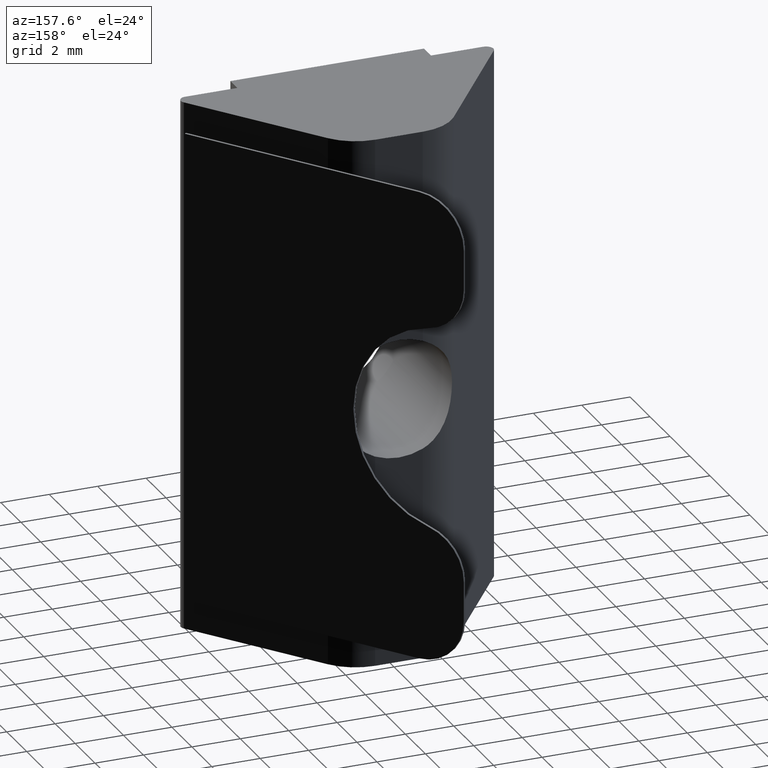
[diagram: clean part render]
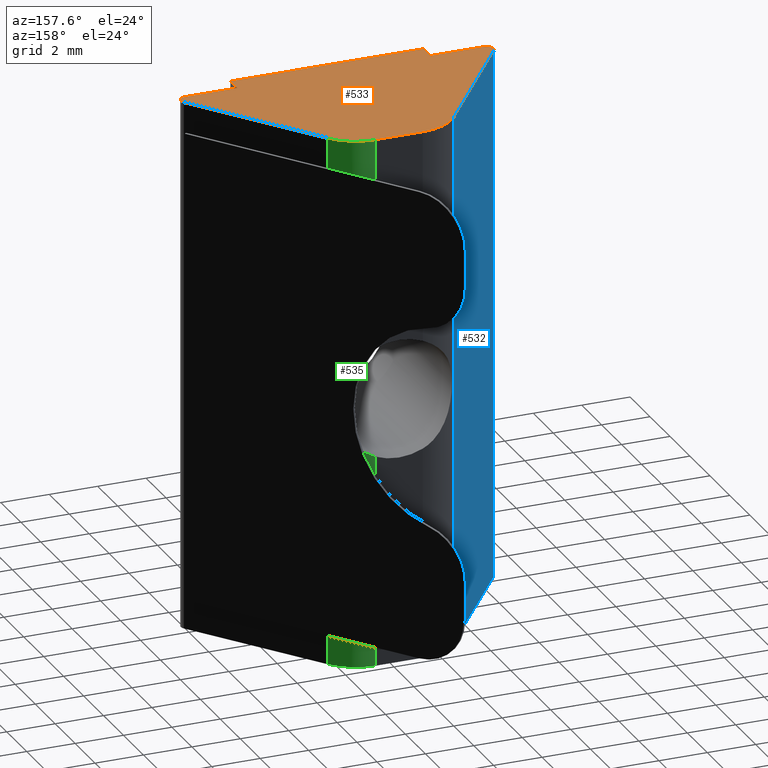
[diagram: same view with three faces highlighted in distinct colors, each labeled with its STEP entity id]
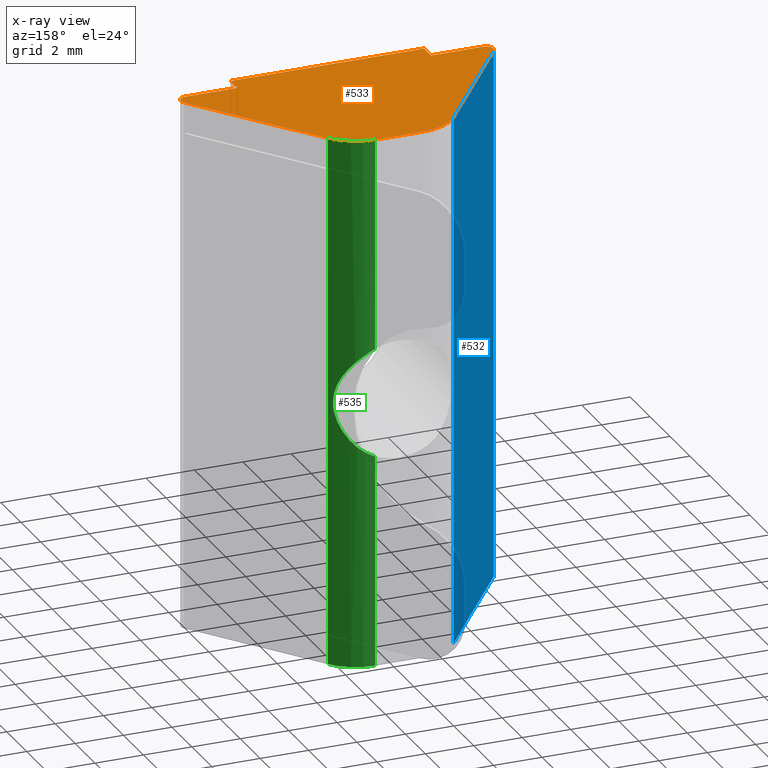
[diagram: x-ray of the same camera — body ghosted, the three highlighted faces saturated]
A machine part, auxiliary view with three faces highlighted in distinct colors.
The next image is the same camera in x-ray (body ghosted, the three faces saturated) — at least one of them is partly hidden behind the body in this view.
Their STEP definitions:

[orange] entity #533 — the highlighted planar face has unit normal (0, 0, 1).
#29=PLANE('',#579);
#54=FACE_OUTER_BOUND('',#82,.T.);
#82=EDGE_LOOP('',(#446,#447,#448,#449,#450,#451,#452,#453,#454,#455,#456,
#457));
#121=LINE('',#829,#175);
#133=LINE('',#861,#187);
#135=LINE('',#867,#189);
#136=LINE('',#870,#190);
#137=LINE('',#872,#191);
#138=LINE('',#874,#192);
#139=LINE('',#876,#193);
#140=LINE('',#877,#194);
#175=VECTOR('',#675,6.44424747615688);
#187=VECTOR('',#701,6.44424747615688);
#189=VECTOR('',#707,1.96884855750627);
#190=VECTOR('',#710,2.15920210335143);
#191=VECTOR('',#711,0.699999999999999);
#192=VECTOR('',#712,8.);
#193=VECTOR('',#713,0.699999999999999);
#194=VECTOR('',#714,2.15920210335143);
#213=CIRCLE('',#569,0.3);
#218=CIRCLE('',#577,0.3);
#219=CIRCLE('',#580,2.);
#220=CIRCLE('',#581,2.);
#246=VERTEX_POINT('',#818);
#247=VERTEX_POINT('',#819);
#250=VERTEX_POINT('',#827);
#261=VERTEX_POINT('',#854);
#262=VERTEX_POINT('',#855);
#263=VERTEX_POINT('',#860);
#264=VERTEX_POINT('',#864);
#265=VERTEX_POINT('',#866);
#266=VERTEX_POINT('',#869);
#267=VERTEX_POINT('',#871);
#268=VERTEX_POINT('',#873);
#269=VERTEX_POINT('',#875);
#308=EDGE_CURVE('',#246,#247,#213,.T.);
#313=EDGE_CURVE('',#246,#250,#121,.T.);
#326=EDGE_CURVE('',#261,#262,#218,.T.);
#329=EDGE_CURVE('',#263,#262,#133,.T.);
#331=EDGE_CURVE('',#264,#250,#219,.T.);
#332=EDGE_CURVE('',#264,#265,#135,.T.);
#333=EDGE_CURVE('',#263,#265,#220,.T.);
#334=EDGE_CURVE('',#261,#266,#136,.T.);
#335=EDGE_CURVE('',#266,#267,#137,.T.);
#336=EDGE_CURVE('',#267,#268,#138,.T.);
#337=EDGE_CURVE('',#268,#269,#139,.T.);
#338=EDGE_CURVE('',#269,#247,#140,.T.);
#446=ORIENTED_EDGE('',*,*,#308,.F.);
#447=ORIENTED_EDGE('',*,*,#313,.T.);
#448=ORIENTED_EDGE('',*,*,#331,.F.);
#449=ORIENTED_EDGE('',*,*,#332,.T.);
#450=ORIENTED_EDGE('',*,*,#333,.F.);
#451=ORIENTED_EDGE('',*,*,#329,.T.);
#452=ORIENTED_EDGE('',*,*,#326,.F.);
#453=ORIENTED_EDGE('',*,*,#334,.T.);
#454=ORIENTED_EDGE('',*,*,#335,.T.);
#455=ORIENTED_EDGE('',*,*,#336,.T.);
#456=ORIENTED_EDGE('',*,*,#337,.T.);
#457=ORIENTED_EDGE('',*,*,#338,.T.);
#533=ADVANCED_FACE('',(#54),#29,.T.);
#569=AXIS2_PLACEMENT_3D('',#820,#666,#667);
#577=AXIS2_PLACEMENT_3D('',#856,#695,#696);
#579=AXIS2_PLACEMENT_3D('',#863,#703,#704);
#580=AXIS2_PLACEMENT_3D('',#865,#705,#706);
#581=AXIS2_PLACEMENT_3D('',#868,#708,#709);
#666=DIRECTION('center_axis',(0.,0.,-1.));
#667=DIRECTION('ref_axis',(0.891632376414828,-0.452760096882274,0.));
#675=DIRECTION('',(-0.59001658934231,0.807391122257898,0.));
#695=DIRECTION('center_axis',(0.,0.,-1.));
#696=DIRECTION('ref_axis',(-0.89163237641483,-0.452760096882271,0.));
#701=DIRECTION('',(-0.59001658934231,-0.807391122257898,0.));
#703=DIRECTION('center_axis',(0.,0.,1.));
#704=DIRECTION('ref_axis',(1.,0.,0.));
#705=DIRECTION('center_axis',(0.,0.,-1.));
#706=DIRECTION('ref_axis',(0.452760096882273,0.891632376414829,0.));
#707=DIRECTION('',(-1.,0.,0.));
#708=DIRECTION('center_axis',(0.,0.,-1.));
#709=DIRECTION('ref_axis',(-0.452760096882273,0.891632376414829,0.));
#710=DIRECTION('',(1.,6.30808536718839E-18,0.));
#711=DIRECTION('',(-7.93016446160827E-16,-1.,0.));
#712=DIRECTION('',(1.,0.,0.));
#713=DIRECTION('',(0.,1.,0.));
#714=DIRECTION('',(1.,-6.30808536718839E-18,0.));
#818=CARTESIAN_POINT('',(6.4014194400288,0.477004976802693,22.));
#819=CARTESIAN_POINT('',(6.15920210335143,3.72680356681451E-18,22.));
#820=CARTESIAN_POINT('Origin',(6.15920210335143,0.3,22.));
#827=CARTESIAN_POINT('',(2.59920652326893,5.68003317868462,22.));
#829=CARTESIAN_POINT('',(6.75,0.,22.));
#854=CARTESIAN_POINT('',(-6.15920210335143,3.7268035668145E-18,22.));
#855=CARTESIAN_POINT('',(-6.4014194400288,0.477004976802693,22.));
#856=CARTESIAN_POINT('Origin',(-6.15920210335143,0.3,22.));
#860=CARTESIAN_POINT('',(-2.59920652326893,5.68003317868462,22.));
#861=CARTESIAN_POINT('',(-2.,6.5,22.));
#863=CARTESIAN_POINT('Origin',(0.,2.06389923886447,22.));
#864=CARTESIAN_POINT('',(0.984424278753135,6.5,22.));
#865=CARTESIAN_POINT('Origin',(0.984424278753135,4.5,22.));
#866=CARTESIAN_POINT('',(-0.984424278753134,6.5,22.));
#867=CARTESIAN_POINT('',(2.,6.5,22.));
#868=CARTESIAN_POINT('Origin',(-0.984424278753134,4.5,22.));
#869=CARTESIAN_POINT('',(-4.,1.73472347597681E-17,22.));
#870=CARTESIAN_POINT('',(-6.75,0.,22.));
#871=CARTESIAN_POINT('',(-4.,-0.699999999999999,22.));
#872=CARTESIAN_POINT('',(-4.,1.73472347597681E-17,22.));
#873=CARTESIAN_POINT('',(4.,-0.699999999999999,22.));
#874=CARTESIAN_POINT('',(-4.,-0.699999999999999,22.));
#875=CARTESIAN_POINT('',(4.,1.73472347597681E-17,22.));
#876=CARTESIAN_POINT('',(4.,-0.699999999999999,22.));
#877=CARTESIAN_POINT('',(4.,1.73472347597681E-17,22.));

[blue] entity #532 — the highlighted planar face has unit normal (-0.8074, 0.59, 0).
#28=PLANE('',#578);
#53=FACE_OUTER_BOUND('',#81,.T.);
#81=EDGE_LOOP('',(#442,#443,#444,#445));
#129=LINE('',#847,#183);
#131=LINE('',#857,#185);
#133=LINE('',#861,#187);
#134=LINE('',#862,#188);
#183=VECTOR('',#687,6.44424747615688);
#185=VECTOR('',#697,22.);
#187=VECTOR('',#701,6.44424747615688);
#188=VECTOR('',#702,22.);
#257=VERTEX_POINT('',#844);
#258=VERTEX_POINT('',#846);
#262=VERTEX_POINT('',#855);
#263=VERTEX_POINT('',#860);
#322=EDGE_CURVE('',#258,#257,#129,.T.);
#327=EDGE_CURVE('',#262,#257,#131,.T.);
#329=EDGE_CURVE('',#263,#262,#133,.T.);
#330=EDGE_CURVE('',#258,#263,#134,.T.);
#442=ORIENTED_EDGE('',*,*,#327,.F.);
#443=ORIENTED_EDGE('',*,*,#329,.F.);
#444=ORIENTED_EDGE('',*,*,#330,.F.);
#445=ORIENTED_EDGE('',*,*,#322,.T.);
#532=ADVANCED_FACE('',(#53),#28,.T.);
#578=AXIS2_PLACEMENT_3D('',#859,#699,#700);
#687=DIRECTION('',(-0.59001658934231,-0.807391122257898,0.));
#697=DIRECTION('',(0.,0.,-1.));
#699=DIRECTION('center_axis',(-0.807391122257898,0.59001658934231,0.));
#700=DIRECTION('ref_axis',(-0.59001658934231,-0.807391122257898,0.));
#701=DIRECTION('',(-0.59001658934231,-0.807391122257898,0.));
#702=DIRECTION('',(0.,0.,1.));
#844=CARTESIAN_POINT('',(-6.4014194400288,0.477004976802693,0.));
#846=CARTESIAN_POINT('',(-2.59920652326893,5.68003317868462,0.));
#847=CARTESIAN_POINT('',(-2.,6.5,0.));
#855=CARTESIAN_POINT('',(-6.4014194400288,0.477004976802693,22.));
#857=CARTESIAN_POINT('',(-6.4014194400288,0.477004976802692,0.));
#859=CARTESIAN_POINT('Origin',(-2.,6.5,0.));
#860=CARTESIAN_POINT('',(-2.59920652326893,5.68003317868462,22.));
#861=CARTESIAN_POINT('',(-2.,6.5,22.));
#862=CARTESIAN_POINT('',(-2.59920652326893,5.68003317868462,0.));

[green] entity #535 — the highlighted cylindrical surface (partial cylindrical patch) has radius 2 mm, axis along (0, 0, 1).
#18=B_SPLINE_CURVE_WITH_KNOTS('',3,(#906,#907,#908,#909,#910,#911,#912,
#913,#914,#915,#916,#917,#918,#919,#920,#921,#922,#923),.UNSPECIFIED.,.F.,
 .F.,(4,2,2,2,2,2,2,2,4),(0.895958537346192,0.940527031099985,1.06303567157097,
1.12428999180646,1.18554431204195,1.24679863227744,1.30805295251293,1.43056159298391,
1.4751300867377),.UNSPECIFIED.);
#56=FACE_OUTER_BOUND('',#84,.T.);
#84=EDGE_LOOP('',(#464,#465,#466,#467,#468,#469,#470,#471));
#101=LINE('',#769,#155);
#120=LINE('',#828,#174);
#123=LINE('',#832,#177);
#143=LINE('',#904,#197);
#144=LINE('',#924,#198);
#155=VECTOR('',#613,19.5);
#174=VECTOR('',#674,1.25);
#177=VECTOR('',#677,1.25);
#197=VECTOR('',#721,8.74719483989374);
#198=VECTOR('',#722,8.74719483989375);
#217=CIRCLE('',#575,2.);
#219=CIRCLE('',#580,2.);
#230=VERTEX_POINT('',#766);
#231=VERTEX_POINT('',#768);
#250=VERTEX_POINT('',#827);
#251=VERTEX_POINT('',#830);
#260=VERTEX_POINT('',#850);
#264=VERTEX_POINT('',#864);
#272=VERTEX_POINT('',#903);
#273=VERTEX_POINT('',#905);
#283=EDGE_CURVE('',#231,#230,#101,.T.);
#312=EDGE_CURVE('',#250,#231,#120,.T.);
#315=EDGE_CURVE('',#230,#251,#123,.T.);
#325=EDGE_CURVE('',#251,#260,#217,.T.);
#331=EDGE_CURVE('',#264,#250,#219,.T.);
#342=EDGE_CURVE('',#260,#272,#143,.T.);
#343=EDGE_CURVE('',#272,#273,#18,.T.);
#344=EDGE_CURVE('',#273,#264,#144,.T.);
#464=ORIENTED_EDGE('',*,*,#331,.T.);
#465=ORIENTED_EDGE('',*,*,#312,.T.);
#466=ORIENTED_EDGE('',*,*,#283,.T.);
#467=ORIENTED_EDGE('',*,*,#315,.T.);
#468=ORIENTED_EDGE('',*,*,#325,.T.);
#469=ORIENTED_EDGE('',*,*,#342,.T.);
#470=ORIENTED_EDGE('',*,*,#343,.T.);
#471=ORIENTED_EDGE('',*,*,#344,.T.);
#514=CYLINDRICAL_SURFACE('',#583,2.);
#535=ADVANCED_FACE('',(#56),#514,.T.);
#575=AXIS2_PLACEMENT_3D('',#852,#691,#692);
#580=AXIS2_PLACEMENT_3D('',#865,#705,#706);
#583=AXIS2_PLACEMENT_3D('',#902,#719,#720);
#613=DIRECTION('',(0.,0.,-1.));
#674=DIRECTION('',(0.,0.,-1.));
#677=DIRECTION('',(0.,0.,-1.));
#691=DIRECTION('center_axis',(0.,0.,1.));
#692=DIRECTION('ref_axis',(0.452760096882273,0.891632376414829,0.));
#705=DIRECTION('center_axis',(0.,0.,-1.));
#706=DIRECTION('ref_axis',(0.452760096882273,0.891632376414829,0.));
#719=DIRECTION('center_axis',(0.,0.,1.));
#720=DIRECTION('ref_axis',(0.452760096882273,0.891632376414829,0.));
#721=DIRECTION('',(0.,0.,1.));
#722=DIRECTION('',(0.,0.,1.));
#766=CARTESIAN_POINT('',(2.59920652326893,5.68003317868462,1.25));
#768=CARTESIAN_POINT('',(2.59920652326893,5.68003317868462,20.75));
#769=CARTESIAN_POINT('',(2.59920652326893,5.68003317868462,0.));
#827=CARTESIAN_POINT('',(2.59920652326893,5.68003317868462,22.));
#828=CARTESIAN_POINT('',(2.59920652326893,5.68003317868462,0.));
#830=CARTESIAN_POINT('',(2.59920652326893,5.68003317868462,0.));
#832=CARTESIAN_POINT('',(2.59920652326893,5.68003317868462,0.));
#850=CARTESIAN_POINT('',(0.984424278753135,6.5,0.));
#852=CARTESIAN_POINT('Origin',(0.984424278753135,4.5,0.));
#864=CARTESIAN_POINT('',(0.984424278753135,6.5,22.));
#865=CARTESIAN_POINT('Origin',(0.984424278753135,4.5,22.));
#902=CARTESIAN_POINT('Origin',(0.984424278753135,4.5,0.));
#903=CARTESIAN_POINT('',(0.984424278753136,6.5,8.74719483989374));
#904=CARTESIAN_POINT('',(0.984424278753135,6.5,0.));
#905=CARTESIAN_POINT('',(0.984424278753135,6.5,13.2528051601063));
#906=CARTESIAN_POINT('Ctrl Pts',(0.984424278753136,6.5,8.74719483989375));
#907=CARTESIAN_POINT('Ctrl Pts',(1.12947979259443,6.5,8.81058077850978));
#908=CARTESIAN_POINT('Ctrl Pts',(1.26702915766058,6.48377637040108,8.88805543010295));
#909=CARTESIAN_POINT('Ctrl Pts',(1.72021441438632,6.39042818148256,9.19801242111313));
#910=CARTESIAN_POINT('Ctrl Pts',(1.98926716754401,6.24433270316294,9.50263172706804));
#911=CARTESIAN_POINT('Ctrl Pts',(2.26539078296794,6.04020331842182,10.0248102458458));
#912=CARTESIAN_POINT('Ctrl Pts',(2.33653147875614,5.97525520395449,10.2098693925281));
#913=CARTESIAN_POINT('Ctrl Pts',(2.43307992151045,5.88056823222171,10.5952682344569));
#914=CARTESIAN_POINT('Ctrl Pts',(2.4585,5.85170291411632,10.7958189325484));
#915=CARTESIAN_POINT('Ctrl Pts',(2.4585,5.85170291411632,11.2041810674516));
#916=CARTESIAN_POINT('Ctrl Pts',(2.43307992151045,5.88056823222171,11.4047317655431));
#917=CARTESIAN_POINT('Ctrl Pts',(2.33653147875614,5.97525520395448,11.7901306074719));
#918=CARTESIAN_POINT('Ctrl Pts',(2.26539078296794,6.04020331842182,11.9751897541542));
#919=CARTESIAN_POINT('Ctrl Pts',(1.98926716754401,6.24433270316293,12.497368272932));
#920=CARTESIAN_POINT('Ctrl Pts',(1.72021441438632,6.39042818148256,12.8019875788869));
#921=CARTESIAN_POINT('Ctrl Pts',(1.26702915766058,6.48377637040108,13.1119445698971));
#922=CARTESIAN_POINT('Ctrl Pts',(1.12947979259443,6.5,13.1894192214902));
#923=CARTESIAN_POINT('Ctrl Pts',(0.984424278753136,6.5,13.2528051601063));
#924=CARTESIAN_POINT('',(0.984424278753135,6.5,0.));